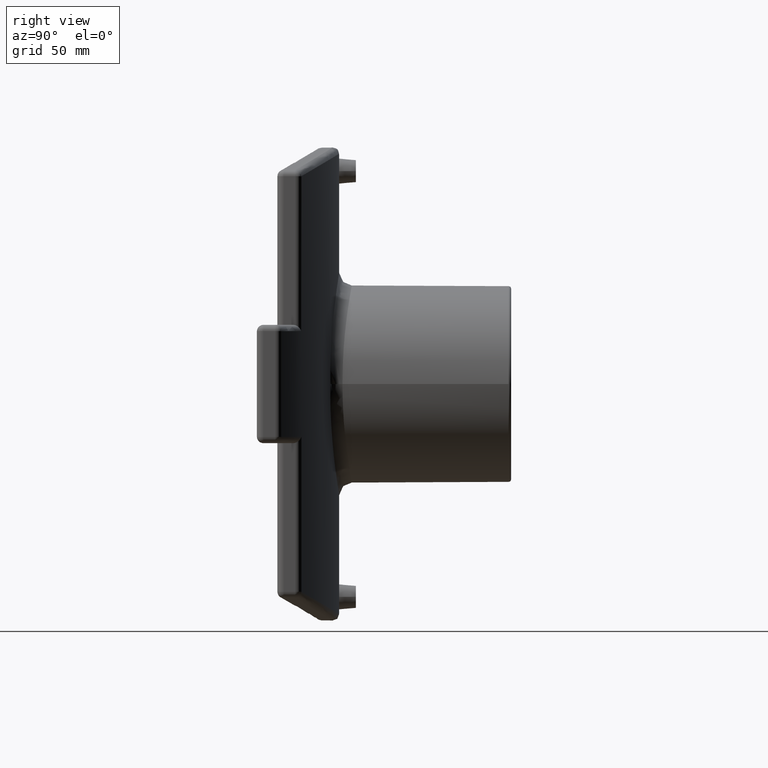
[diagram: clean part render]
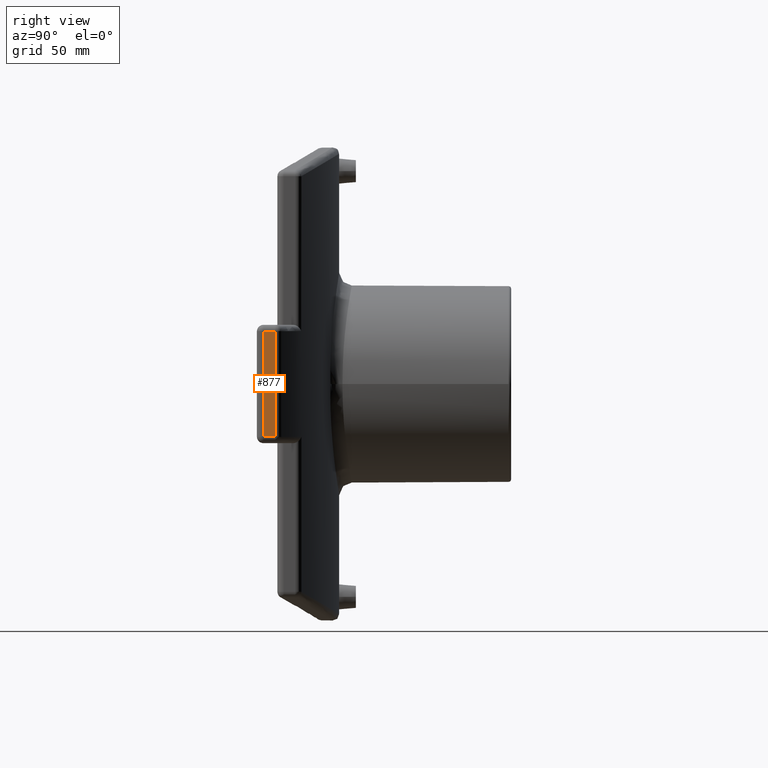
[diagram: same view with one face highlighted and labeled with its STEP entity id]
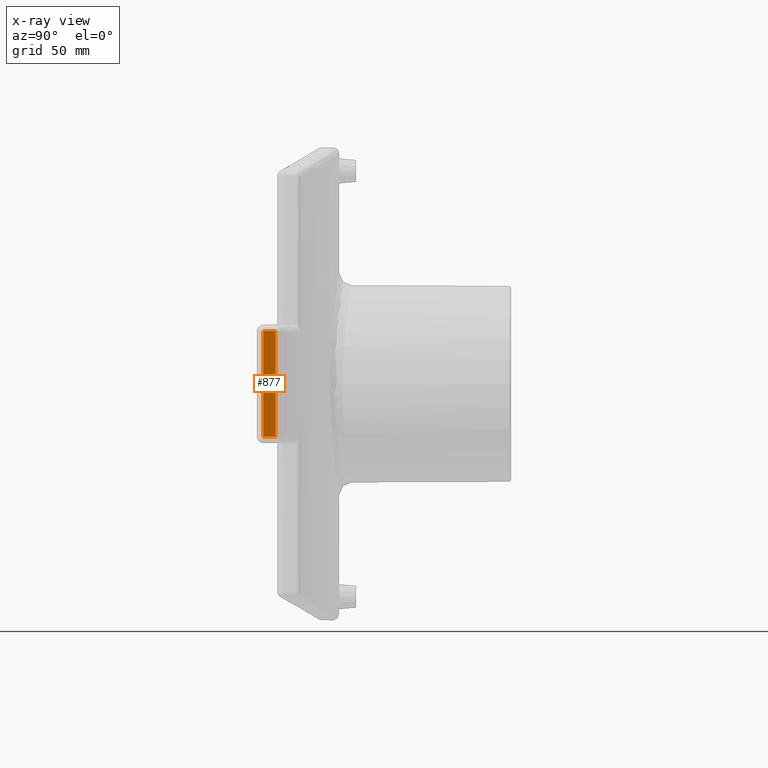
[diagram: x-ray of the same camera — body ghosted, the highlighted face saturated]
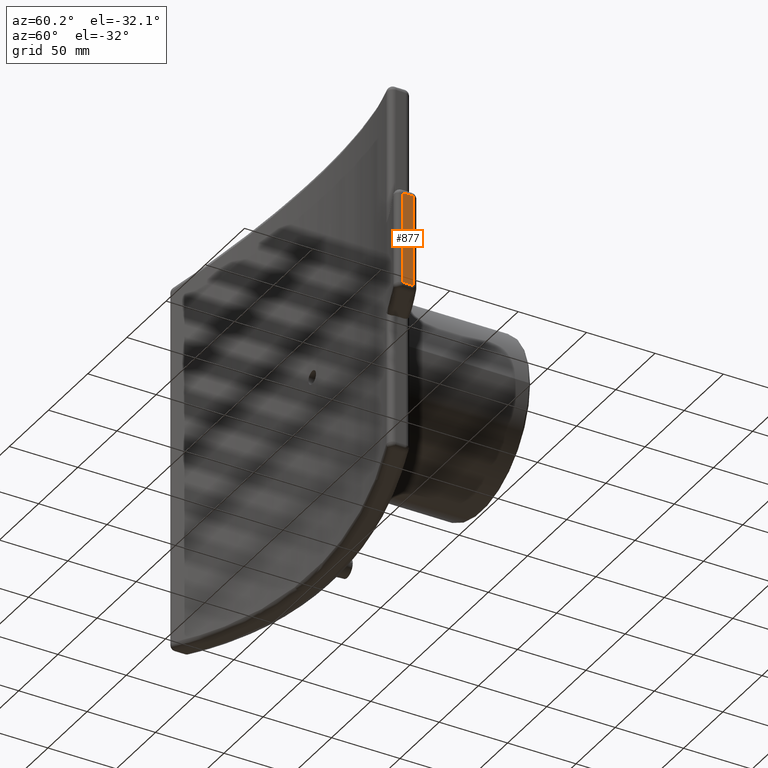
[diagram: same view with one face highlighted and labeled with its STEP entity id]
A machine part, right view. The second image highlights one B-rep face of the part: STEP entity #877.
The next image is the same camera in x-ray: the body ghosted, the highlighted face saturated — about 0% of this face is hidden behind the body in this view.
A second angle (auxiliary view) of the same face is appended — the face is thin or edge-on in the first view.
In plain terms, the highlighted planar face has unit normal (1, 0, 0).
Its self-contained STEP definition (entity closure, byte-faithful):
#35=LINE('',#1884,#65);
#36=LINE('',#1973,#66);
#39=LINE('',#1977,#69);
#50=LINE('',#2106,#80);
#65=VECTOR('',#1158,67.);
#66=VECTOR('',#1193,67.);
#69=VECTOR('',#1198,7.69519151571075);
#80=VECTOR('',#1243,7.69519151571075);
#153=PLANE('',#1003);
#240=FACE_OUTER_BOUND('',#328,.T.);
#328=EDGE_LOOP('',(#783,#784,#785,#786));
#437=VERTEX_POINT('',#1859);
#443=VERTEX_POINT('',#1878);
#445=VERTEX_POINT('',#1886);
#455=VERTEX_POINT('',#1969);
#525=EDGE_CURVE('',#443,#437,#35,.T.);
#539=EDGE_CURVE('',#445,#455,#36,.T.);
#542=EDGE_CURVE('',#455,#443,#39,.T.);
#566=EDGE_CURVE('',#437,#445,#50,.T.);
#783=ORIENTED_EDGE('',*,*,#539,.F.);
#784=ORIENTED_EDGE('',*,*,#566,.F.);
#785=ORIENTED_EDGE('',*,*,#525,.F.);
#786=ORIENTED_EDGE('',*,*,#542,.F.);
#877=ADVANCED_FACE('',(#240),#153,.T.);
#1003=AXIS2_PLACEMENT_3D('',#2199,#1278,#1279);
#1158=DIRECTION('',(0.,0.,-1.));
#1193=DIRECTION('',(0.,0.,1.));
#1198=DIRECTION('',(0.,1.,0.));
#1243=DIRECTION('',(0.,-1.,0.));
#1278=DIRECTION('center_axis',(1.,0.,0.));
#1279=DIRECTION('ref_axis',(0.,1.,0.));
#1859=CARTESIAN_POINT('',(173.250000000004,374.53362666121,-33.5));
#1878=CARTESIAN_POINT('',(173.250000000004,374.53362666121,33.5));
#1884=CARTESIAN_POINT('',(173.250000000004,374.53362666121,0.));
#1886=CARTESIAN_POINT('',(173.250000000004,366.838435145499,-33.5));
#1969=CARTESIAN_POINT('',(173.250000000004,366.838435145499,33.5));
#1973=CARTESIAN_POINT('',(173.250000000004,366.838435145499,0.));
#1977=CARTESIAN_POINT('',(173.250000000004,368.018695389558,33.5));
#2106=CARTESIAN_POINT('',(173.250000000004,368.018695389558,-33.5));
#2199=CARTESIAN_POINT('Origin',(173.250000000004,360.533545595966,0.));